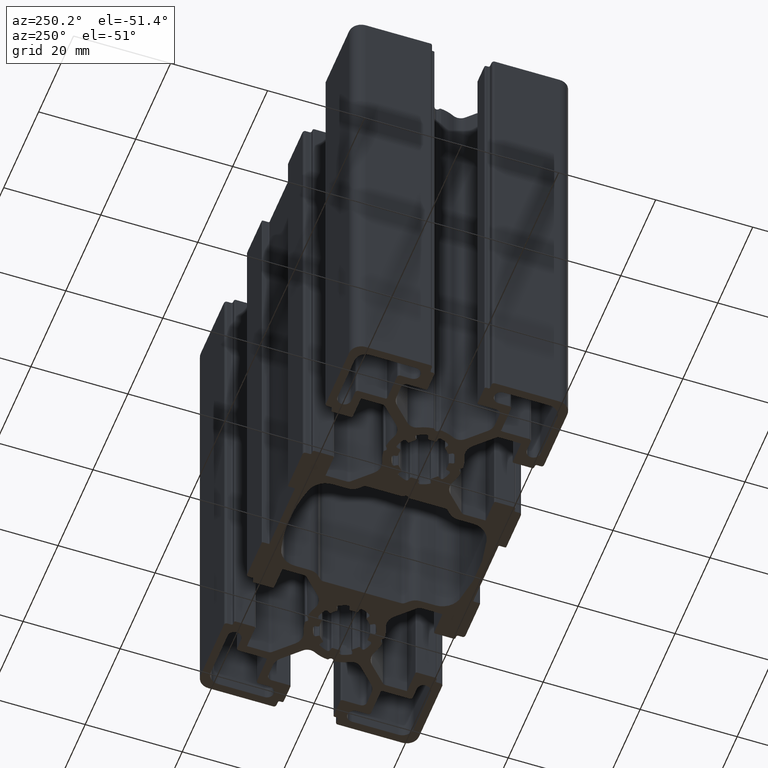
[diagram: clean part render]
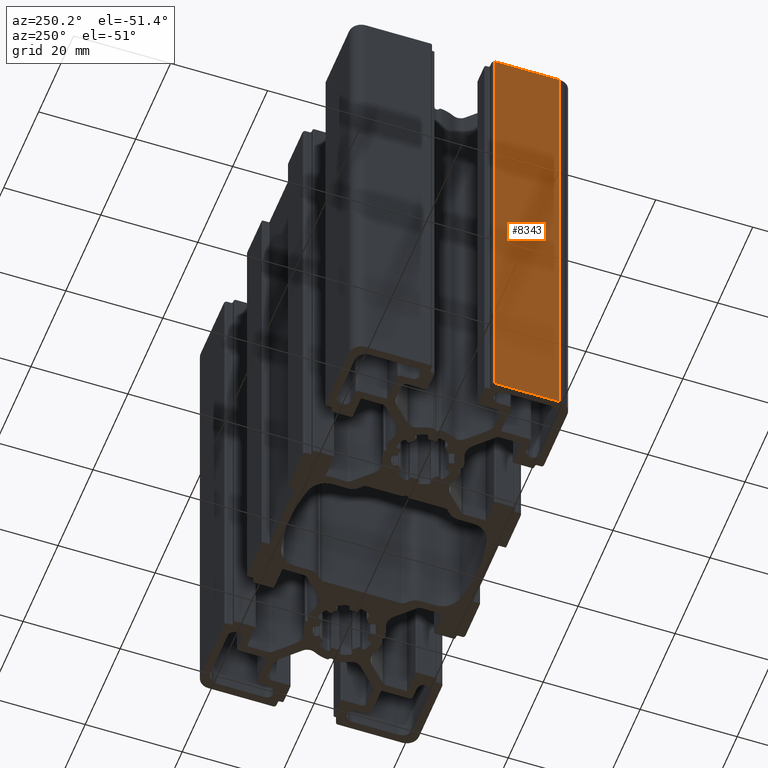
[diagram: same view with one face highlighted and labeled with its STEP entity id]
A machine part, auxiliary view. The second image highlights one B-rep face of the part: STEP entity #8343.
In plain terms, the highlighted planar face has unit normal (-1, 0, 0).
Its self-contained STEP definition (entity closure, byte-faithful):
#1208=FACE_OUTER_BOUND('',#1630,.T.);
#1630=EDGE_LOOP('',(#6882,#6883,#6884,#6885));
#2132=LINE('',#13520,#2878);
#2382=LINE('',#14384,#3128);
#2383=LINE('',#14386,#3129);
#2384=LINE('',#14387,#3130);
#2878=VECTOR('',#10947,100.);
#3128=VECTOR('',#11851,13.3500000000001);
#3129=VECTOR('',#11852,100.);
#3130=VECTOR('',#11853,13.3500000000001);
#3689=VERTEX_POINT('',#13514);
#3691=VERTEX_POINT('',#13518);
#3978=VERTEX_POINT('',#14383);
#3979=VERTEX_POINT('',#14385);
#4788=EDGE_CURVE('',#3689,#3691,#2132,.T.);
#5220=EDGE_CURVE('',#3978,#3691,#2382,.T.);
#5221=EDGE_CURVE('',#3978,#3979,#2383,.T.);
#5222=EDGE_CURVE('',#3979,#3689,#2384,.T.);
#6882=ORIENTED_EDGE('',*,*,#4788,.T.);
#6883=ORIENTED_EDGE('',*,*,#5220,.F.);
#6884=ORIENTED_EDGE('',*,*,#5221,.T.);
#6885=ORIENTED_EDGE('',*,*,#5222,.T.);
#7925=PLANE('',#9273);
#8343=ADVANCED_FACE('',(#1208),#7925,.T.);
#9273=AXIS2_PLACEMENT_3D('',#14382,#11849,#11850);
#10947=DIRECTION('',(0.,0.,-1.));
#11849=DIRECTION('center_axis',(-1.,0.,0.));
#11850=DIRECTION('ref_axis',(0.,-1.,0.));
#11851=DIRECTION('',(0.,1.,0.));
#11852=DIRECTION('',(0.,0.,1.));
#11853=DIRECTION('',(0.,1.,0.));
#13514=CARTESIAN_POINT('',(-45.,-6.64999999999987,100.));
#13518=CARTESIAN_POINT('',(-45.,-6.64999999999987,0.));
#13520=CARTESIAN_POINT('',(-45.,-6.64999999999987,0.));
#14382=CARTESIAN_POINT('Origin',(-45.,20.,0.));
#14383=CARTESIAN_POINT('',(-45.,-20.,0.));
#14384=CARTESIAN_POINT('',(-45.,10.,0.));
#14385=CARTESIAN_POINT('',(-45.,-20.,100.));
#14386=CARTESIAN_POINT('',(-45.,-20.,0.));
#14387=CARTESIAN_POINT('',(-45.,10.,100.));